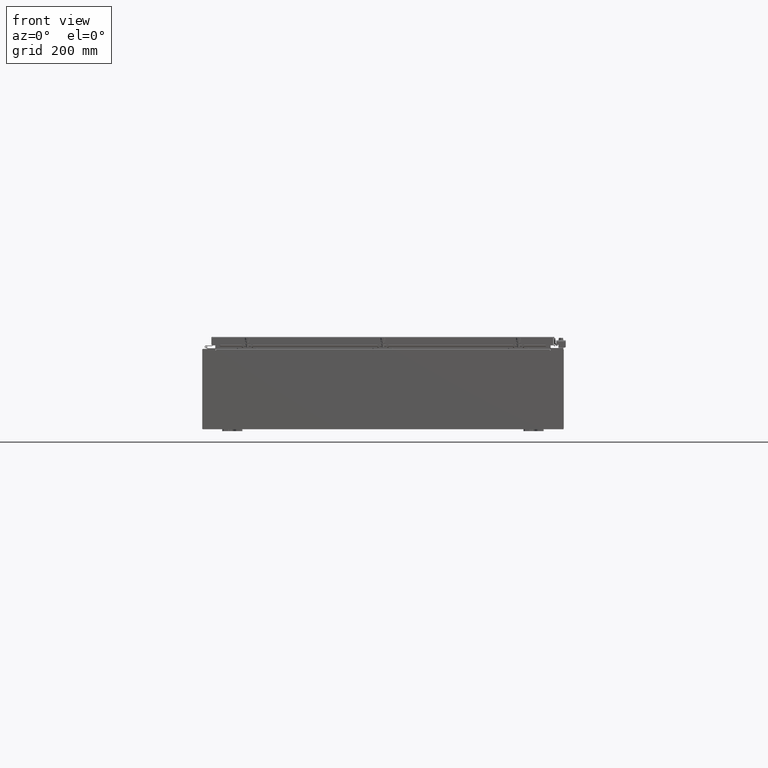
[diagram: clean part render]
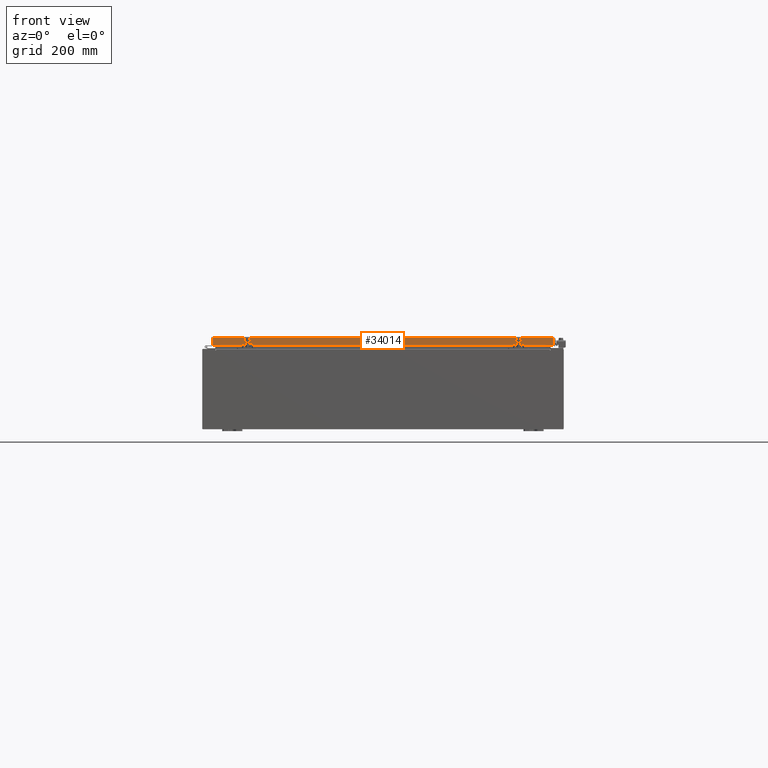
[diagram: same view with one face highlighted and labeled with its STEP entity id]
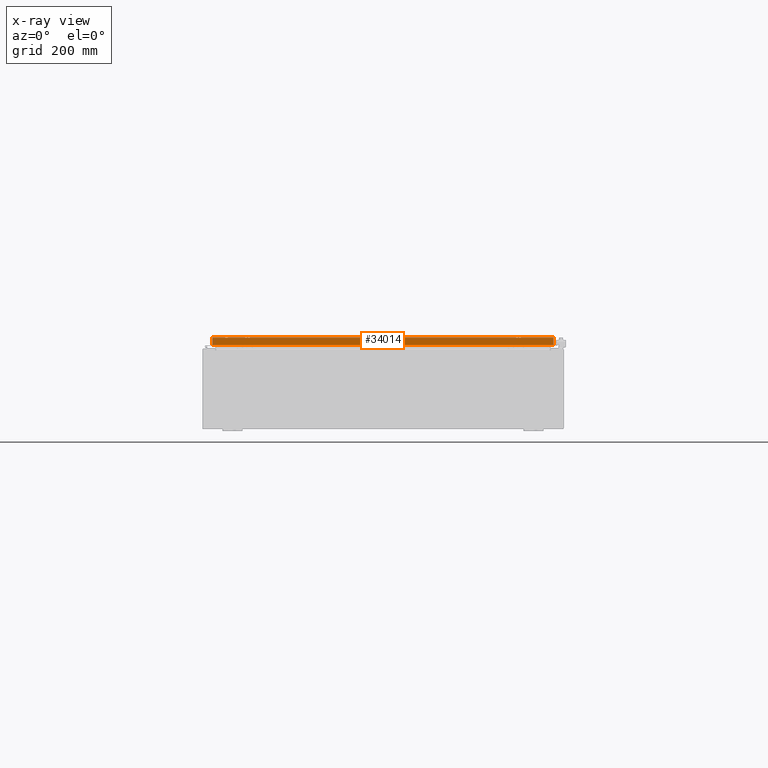
[diagram: x-ray of the same camera — body ghosted, the highlighted face saturated]
A machine part, front view. The second image highlights one B-rep face of the part: STEP entity #34014.
The next image is the same camera in x-ray: the body ghosted, the highlighted face saturated — about 0% of this face is hidden behind the body in this view.
In plain terms, the highlighted planar face has unit normal (-0, 1, -0).
Its self-contained STEP definition (entity closure, byte-faithful):
#695 = DIRECTION ( 'NONE',  ( -1.000000000000000000, -0.0000000000000000000, 1.239713195391617100E-016 ) ) ;
#3799 = CARTESIAN_POINT ( 'NONE',  ( -16.98915786437626700, -29.09400000000000100, -0.08769999999999547600 ) ) ;
#3840 = CARTESIAN_POINT ( 'NONE',  ( -16.23915786437626000, -29.09400000000000800, -0.8499999999999994200 ) ) ;
#4491 = EDGE_LOOP ( 'NONE', ( #7601, #4577, #15076, #62841, #44095, #16911 ) ) ;
#4542 = LINE ( 'NONE', #45113, #52997 ) ;
#4577 = ORIENTED_EDGE ( 'NONE', *, *, #44361, .T. ) ;
#7109 = VERTEX_POINT ( 'NONE', #21553 ) ;
#7317 = VECTOR ( 'NONE', #16544, 39.37007874015748100 ) ;
#7601 = ORIENTED_EDGE ( 'NONE', *, *, #56218, .F. ) ;
#8892 = LINE ( 'NONE', #51422, #7317 ) ;
#12606 = EDGE_CURVE ( 'NONE', #7109, #37317, #16996, .T. ) ;
#12815 = CARTESIAN_POINT ( 'NONE',  ( 17.07800000000000300, -29.09400000000000500, -0.8499999999999996400 ) ) ;
#15076 = ORIENTED_EDGE ( 'NONE', *, *, #29748, .F. ) ;
#15636 = EDGE_CURVE ( 'NONE', #37317, #58191, #46423, .T. ) ;
#16544 = DIRECTION ( 'NONE',  ( -1.000000000000000000, -0.0000000000000000000, 1.239713195391617100E-016 ) ) ;
#16911 = ORIENTED_EDGE ( 'NONE', *, *, #12606, .F. ) ;
#16996 = LINE ( 'NONE', #32869, #55163 ) ;
#18107 = DIRECTION ( 'NONE',  ( 0.0000000000000000000, 5.637761885544721100E-015, 1.000000000000000000 ) ) ;
#21457 = CARTESIAN_POINT ( 'NONE',  ( -16.98915786437626700, -29.09400000000000500, -0.8499999999999954300 ) ) ;
#21553 = CARTESIAN_POINT ( 'NONE',  ( 16.98915786437627100, -29.09400000000000100, -0.08769999999999549000 ) ) ;
#23387 = CARTESIAN_POINT ( 'NONE',  ( 16.98915786437627100, -29.09400000000000500, -0.8499999999999996400 ) ) ;
#24398 = CARTESIAN_POINT ( 'NONE',  ( 17.07800000000000300, -29.09400000000000100, -0.08769999999999547600 ) ) ;
#27915 = PLANE ( 'NONE',  #32888 ) ;
#29425 = VECTOR ( 'NONE', #64129, 39.37007874015748100 ) ;
#29748 = EDGE_CURVE ( 'NONE', #58264, #53256, #8892, .T. ) ;
#31019 = LINE ( 'NONE', #24398, #29425 ) ;
#31543 = VECTOR ( 'NONE', #695, 39.37007874015748100 ) ;
#32492 = DIRECTION ( 'NONE',  ( -0.0000000000000000000, -5.637761885544721800E-015, -1.000000000000000000 ) ) ;
#32869 = CARTESIAN_POINT ( 'NONE',  ( 16.98915786437627100, -29.09400000000000100, -0.07469999999999958600 ) ) ;
#32888 = AXIS2_PLACEMENT_3D ( 'NONE', #32984, #48029, #18107 ) ;
#32984 = CARTESIAN_POINT ( 'NONE',  ( 2.033440117909723900E-029, -29.09400000000000100, 1.642858579540496700E-013 ) ) ;
#34014 = ADVANCED_FACE ( 'NONE', ( #50238 ), #27915, .F. ) ;
#37317 = VERTEX_POINT ( 'NONE', #23387 ) ;
#38037 = VECTOR ( 'NONE', #47978, 39.37007874015748100 ) ;
#42979 = CARTESIAN_POINT ( 'NONE',  ( 16.23915786437626400, -29.09400000000000800, -0.8499999999999994200 ) ) ;
#44095 = ORIENTED_EDGE ( 'NONE', *, *, #15636, .F. ) ;
#44361 = EDGE_CURVE ( 'NONE', #56157, #53256, #4542, .T. ) ;
#45113 = CARTESIAN_POINT ( 'NONE',  ( -16.98915786437626700, -29.09400000000000100, 1.642858579540496700E-013 ) ) ;
#46423 = LINE ( 'NONE', #12815, #31543 ) ;
#47978 = DIRECTION ( 'NONE',  ( -1.000000000000000000, 0.0000000000000000000, 0.0000000000000000000 ) ) ;
#48029 = DIRECTION ( 'NONE',  ( -6.989207801985715000E-031, 1.000000000000000000, -5.637761885544721100E-015 ) ) ;
#50238 = FACE_OUTER_BOUND ( 'NONE', #4491, .T. ) ;
#51422 = CARTESIAN_POINT ( 'NONE',  ( 17.07800000000000300, -29.09400000000000500, -0.8499999999999996400 ) ) ;
#52983 = CARTESIAN_POINT ( 'NONE',  ( 16.23915786437626400, -29.09400000000000800, -0.8499999999999994200 ) ) ;
#52997 = VECTOR ( 'NONE', #59757, 39.37007874015748100 ) ;
#53256 = VERTEX_POINT ( 'NONE', #21457 ) ;
#55163 = VECTOR ( 'NONE', #32492, 39.37007874015748100 ) ;
#56157 = VERTEX_POINT ( 'NONE', #3799 ) ;
#56218 = EDGE_CURVE ( 'NONE', #56157, #7109, #31019, .T. ) ;
#58191 = VERTEX_POINT ( 'NONE', #52983 ) ;
#58264 = VERTEX_POINT ( 'NONE', #3840 ) ;
#59757 = DIRECTION ( 'NONE',  ( 0.0000000000000000000, -5.637761885544721800E-015, -1.000000000000000000 ) ) ;
#62841 = ORIENTED_EDGE ( 'NONE', *, *, #64482, .F. ) ;
#64129 = DIRECTION ( 'NONE',  ( 1.000000000000000000, 6.989207801985715800E-031, -3.922586267643549700E-045 ) ) ;
#64350 = LINE ( 'NONE', #42979, #38037 ) ;
#64482 = EDGE_CURVE ( 'NONE', #58191, #58264, #64350, .T. ) ;